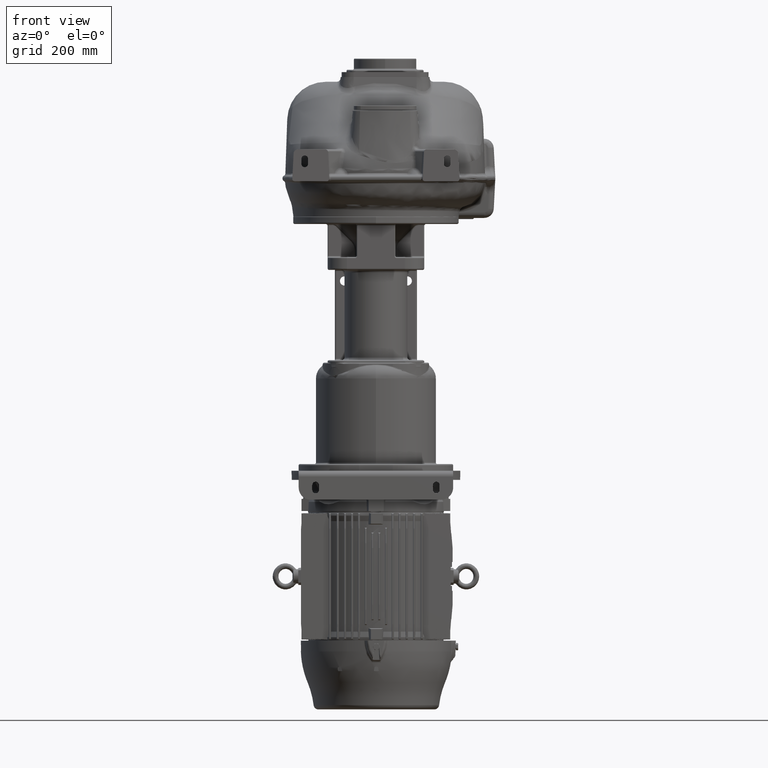
[diagram: clean part render]
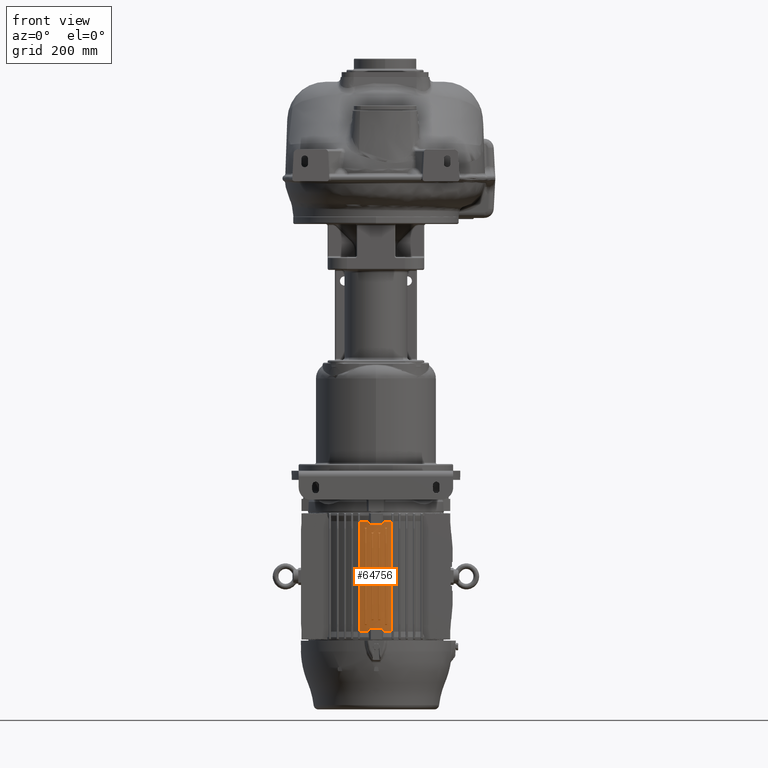
[diagram: same view with one face highlighted and labeled with its STEP entity id]
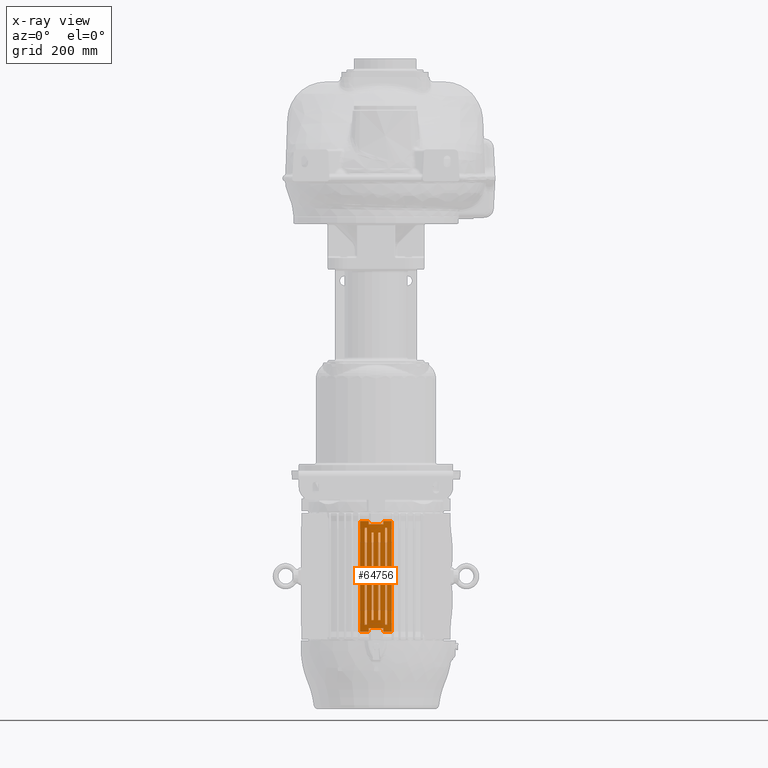
[diagram: x-ray of the same camera — body ghosted, the highlighted face saturated]
A machine part, front view. The second image highlights one B-rep face of the part: STEP entity #64756.
The next image is the same camera in x-ray: the body ghosted, the highlighted face saturated — about 0% of this face is hidden behind the body in this view.
In plain terms, the highlighted cylindrical surface (partial cylindrical patch) has radius 137 mm, axis along (0, 0, 1).
Its self-contained STEP definition (entity closure, byte-faithful):
#10325=CARTESIAN_POINT('',(1.9E1,2.2E2,-7.098389290849E2));
#10326=DIRECTION('',(0.E0,0.E0,1.E0));
#10327=DIRECTION('',(1.115642527890E-1,-9.937572226151E-1,0.E0));
#10328=AXIS2_PLACEMENT_3D('',#10325,#10326,#10327);
#11656=CARTESIAN_POINT('',(1.9E1,2.2E2,-9.387610709151E2));
#11657=DIRECTION('',(0.E0,0.E0,-1.E0));
#11658=DIRECTION('',(2.392273428924E-1,-9.709635824338E-1,0.E0));
#11659=AXIS2_PLACEMENT_3D('',#11656,#11657,#11658);
#11673=CARTESIAN_POINT('',(3.428430263209E1,8.385526050173E1,
-9.317378671218E2));
#11674=CARTESIAN_POINT('',(2.409476754403E1,8.271133133826E1,
-9.318379479555E2));
#11675=CARTESIAN_POINT('',(1.390523245597E1,8.271133133826E1,
-9.318379479555E2));
#11676=CARTESIAN_POINT('',(3.715697367913E0,8.385526050173E1,
-9.317378671218E2));
#11678=DIRECTION('',(0.E0,0.E0,1.E0));
#11679=VECTOR('',#11678,7.023203793346E0);
#11680=CARTESIAN_POINT('',(3.715697367913E0,8.385526050173E1,
-9.387610709151E2));
#11681=LINE('',#11680,#11679);
#11682=DIRECTION('',(0.E0,0.E0,-1.E0));
#11683=VECTOR('',#11682,2.289221418303E2);
#11684=CARTESIAN_POINT('',(-1.377414597625E1,8.697798920657E1,
-7.098389290849E2));
#11685=LINE('',#11684,#11683);
#11686=DIRECTION('',(0.E0,-1.011707415401E-14,1.E0));
#11687=VECTOR('',#11686,7.023203793347E0);
#11688=CARTESIAN_POINT('',(3.715697367913E0,8.385526050173E1,
-7.168621328782E2));
#11689=LINE('',#11688,#11687);
#11690=CARTESIAN_POINT('',(3.715697367913E0,8.385526050173E1,
-7.168621328782E2));
#11691=CARTESIAN_POINT('',(1.390523245597E1,8.271133133826E1,
-7.167620520445E2));
#11692=CARTESIAN_POINT('',(2.409476754403E1,8.271133133826E1,
-7.167620520445E2));
#11693=CARTESIAN_POINT('',(3.428430263209E1,8.385526050173E1,
-7.168621328782E2));
#11695=DIRECTION('',(0.E0,0.E0,-1.E0));
#11696=VECTOR('',#11695,7.023203793347E0);
#11697=CARTESIAN_POINT('',(3.428430263209E1,8.385526050173E1,
-7.098389290849E2));
#11698=LINE('',#11697,#11696);
#11699=DIRECTION('',(0.E0,0.E0,1.E0));
#11700=VECTOR('',#11699,2.289221418303E2);
#11701=CARTESIAN_POINT('',(5.177414597625E1,8.697798920657E1,
-9.387610709151E2));
#11702=LINE('',#11701,#11700);
#11703=DIRECTION('',(0.E0,0.E0,-1.E0));
#11704=VECTOR('',#11703,7.023203793346E0);
#11705=CARTESIAN_POINT('',(3.428430263209E1,8.385526050173E1,
-9.317378671218E2));
#11706=LINE('',#11705,#11704);
#11707=DIRECTION('',(0.E0,0.E0,1.E0));
#11708=VECTOR('',#11707,2.013144466757E2);
#11709=CARTESIAN_POINT('',(-4.190841392367E0,8.497709499676E1,
-9.249572233378E2));
#11710=LINE('',#11709,#11708);
#11711=DIRECTION('',(0.E0,0.E0,-1.E0));
#11712=VECTOR('',#11711,2.013144466757E2);
#11713=CARTESIAN_POINT('',(2.589709931828E-1,8.428790093818E1,
-7.236427766622E2));
#11714=LINE('',#11713,#11712);
#11715=DIRECTION('',(0.E0,0.E0,1.E0));
#11716=VECTOR('',#11715,1.813144466757E2);
#11717=CARTESIAN_POINT('',(9.775413463679E0,8.331091117710E1,
-9.149572233378E2));
#11718=LINE('',#11717,#11716);
#11719=DIRECTION('',(0.E0,0.E0,-1.E0));
#11720=VECTOR('',#11719,1.813144466757E2);
#11721=CARTESIAN_POINT('',(1.421199941170E1,8.308369326349E1,
-7.336427766622E2));
#11722=LINE('',#11721,#11720);
#11723=DIRECTION('',(0.E0,0.E0,1.E0));
#11724=VECTOR('',#11723,2.013144466757E2);
#11725=CARTESIAN_POINT('',(3.774102900682E1,8.428790093818E1,
-9.249572233378E2));
#11726=LINE('',#11725,#11724);
#11727=DIRECTION('',(0.E0,0.E0,-1.E0));
#11728=VECTOR('',#11727,2.013144466757E2);
#11729=CARTESIAN_POINT('',(4.219084139237E1,8.497709499676E1,
-7.236427766622E2));
#11730=LINE('',#11729,#11728);
#11731=DIRECTION('',(0.E0,0.E0,1.E0));
#11732=VECTOR('',#11731,1.813144466757E2);
#11733=CARTESIAN_POINT('',(2.378800058831E1,8.308369326349E1,
-9.149572233378E2));
#11734=LINE('',#11733,#11732);
#11735=DIRECTION('',(0.E0,0.E0,-1.E0));
#11736=VECTOR('',#11735,1.813144466757E2);
#11737=CARTESIAN_POINT('',(2.822458653632E1,8.331091117710E1,
-7.336427766622E2));
#11738=LINE('',#11737,#11736);
#19256=CARTESIAN_POINT('',(1.9E1,2.2E2,-7.098389290849E2));
#19257=DIRECTION('',(0.E0,0.E0,1.E0));
#19258=DIRECTION('',(-2.392273428923E-1,-9.709635824338E-1,0.E0));
#19259=AXIS2_PLACEMENT_3D('',#19256,#19257,#19258);
#19266=CARTESIAN_POINT('',(-1.377414597625E1,8.697798920657E1,
-7.098389290849E2));
#19290=CARTESIAN_POINT('',(-1.377414597625E1,8.697798920657E1,
-9.387610709151E2));
#19297=CARTESIAN_POINT('',(1.9E1,2.2E2,-9.387610709151E2));
#19298=DIRECTION('',(0.E0,0.E0,-1.E0));
#19299=DIRECTION('',(-1.115642527890E-1,-9.937572226151E-1,0.E0));
#19300=AXIS2_PLACEMENT_3D('',#19297,#19298,#19299);
#19302=CARTESIAN_POINT('',(3.715697367913E0,8.385526050173E1,
-9.387610709151E2));
#23302=CARTESIAN_POINT('',(-4.190841392367E0,8.497709499676E1,
-7.236427766622E2));
#23309=CARTESIAN_POINT('',(1.9E1,2.2E2,-7.236427766622E2));
#23310=DIRECTION('',(0.E0,0.E0,-1.E0));
#23311=DIRECTION('',(-1.367958321665E-1,-9.905992632250E-1,0.E0));
#23312=AXIS2_PLACEMENT_3D('',#23309,#23310,#23311);
#23319=CARTESIAN_POINT('',(2.589709931828E-1,8.428790093818E1,
-7.236427766622E2));
#23329=CARTESIAN_POINT('',(2.589709931828E-1,8.428790093818E1,
-9.249572233378E2));
#23336=CARTESIAN_POINT('',(1.9E1,2.2E2,-9.249572233378E2));
#23337=DIRECTION('',(0.E0,0.E0,1.E0));
#23338=DIRECTION('',(-1.692762145428E-1,-9.855686496587E-1,0.E0));
#23339=AXIS2_PLACEMENT_3D('',#23336,#23337,#23338);
#23346=CARTESIAN_POINT('',(-4.190841392367E0,8.497709499676E1,
-9.249572233378E2));
#23393=CARTESIAN_POINT('',(9.775413463679E0,8.331091117710E1,
-7.336427766622E2));
#23400=CARTESIAN_POINT('',(1.9E1,2.2E2,-7.336427766622E2));
#23401=DIRECTION('',(0.E0,0.E0,-1.E0));
#23402=DIRECTION('',(-3.494890940368E-2,-9.993891002665E-1,0.E0));
#23403=AXIS2_PLACEMENT_3D('',#23400,#23401,#23402);
#23421=CARTESIAN_POINT('',(1.9E1,2.2E2,-9.149572233378E2));
#23422=DIRECTION('',(0.E0,0.E0,1.E0));
#23423=DIRECTION('',(-6.733274844030E-2,-9.977305753496E-1,0.E0));
#23424=AXIS2_PLACEMENT_3D('',#23421,#23422,#23423);
#23431=CARTESIAN_POINT('',(9.775413463679E0,8.331091117710E1,
-9.149572233378E2));
#23477=CARTESIAN_POINT('',(3.774102900682E1,8.428790093818E1,
-7.236427766622E2));
#23484=CARTESIAN_POINT('',(1.9E1,2.2E2,-7.236427766622E2));
#23485=DIRECTION('',(0.E0,0.E0,-1.E0));
#23486=DIRECTION('',(1.692762145428E-1,-9.855686496587E-1,0.E0));
#23487=AXIS2_PLACEMENT_3D('',#23484,#23485,#23486);
#23504=CARTESIAN_POINT('',(4.219084139237E1,8.497709499676E1,
-9.249572233378E2));
#23511=CARTESIAN_POINT('',(1.9E1,2.2E2,-9.249572233378E2));
#23512=DIRECTION('',(0.E0,0.E0,1.E0));
#23513=DIRECTION('',(1.367958321666E-1,-9.905992632250E-1,0.E0));
#23514=AXIS2_PLACEMENT_3D('',#23511,#23512,#23513);
#23568=CARTESIAN_POINT('',(1.9E1,2.2E2,-7.336427766622E2));
#23569=DIRECTION('',(0.E0,0.E0,-1.E0));
#23570=DIRECTION('',(6.733274844031E-2,-9.977305753496E-1,0.E0));
#23571=AXIS2_PLACEMENT_3D('',#23568,#23569,#23570);
#23603=CARTESIAN_POINT('',(1.9E1,2.2E2,-9.149572233378E2));
#23604=DIRECTION('',(0.E0,0.E0,1.E0));
#23605=DIRECTION('',(3.494890940371E-2,-9.993891002665E-1,0.E0));
#23606=AXIS2_PLACEMENT_3D('',#23603,#23604,#23605);
#44815=VERTEX_POINT('',#23477);
#44822=VERTEX_POINT('',#23504);
#45037=VERTEX_POINT('',#23393);
#45040=VERTEX_POINT('',#23431);
#45043=CARTESIAN_POINT('',(1.421199941170E1,8.308369326349E1,
-7.336427766622E2));
#45045=VERTEX_POINT('',#45043);
#45060=VERTEX_POINT('',#23329);
#45061=VERTEX_POINT('',#23302);
#45063=VERTEX_POINT('',#23346);
#45070=VERTEX_POINT('',#23319);
#45073=VERTEX_POINT('',#19290);
#45076=VERTEX_POINT('',#19266);
#45748=CARTESIAN_POINT('',(3.428430263209E1,8.385526050173E1,
-7.098389290849E2));
#45749=CARTESIAN_POINT('',(5.177414597625E1,8.697798920657E1,
-7.098389290849E2));
#45750=VERTEX_POINT('',#45748);
#45751=VERTEX_POINT('',#45749);
#45770=CARTESIAN_POINT('',(5.177414597625E1,8.697798920657E1,
-9.387610709151E2));
#45771=CARTESIAN_POINT('',(3.428430263209E1,8.385526050173E1,
-9.387610709151E2));
#45772=VERTEX_POINT('',#45770);
#45773=VERTEX_POINT('',#45771);
#45790=CARTESIAN_POINT('',(3.428430263209E1,8.385526050173E1,
-9.317378671218E2));
#45791=VERTEX_POINT('',#45790);
#45794=CARTESIAN_POINT('',(2.378800058831E1,8.308369326349E1,
-9.149572233378E2));
#45795=CARTESIAN_POINT('',(2.378800058831E1,8.308369326349E1,
-7.336427766622E2));
#45796=VERTEX_POINT('',#45794);
#45797=VERTEX_POINT('',#45795);
#45822=CARTESIAN_POINT('',(4.219084139237E1,8.497709499676E1,
-7.236427766622E2));
#45823=VERTEX_POINT('',#45822);
#45826=CARTESIAN_POINT('',(3.428430263209E1,8.385526050173E1,
-7.168621328782E2));
#45827=VERTEX_POINT('',#45826);
#45828=CARTESIAN_POINT('',(3.774102900682E1,8.428790093818E1,
-9.249572233378E2));
#45829=VERTEX_POINT('',#45828);
#45834=CARTESIAN_POINT('',(2.822458653632E1,8.331091117710E1,
-9.149572233378E2));
#45835=VERTEX_POINT('',#45834);
#45836=CARTESIAN_POINT('',(2.822458653632E1,8.331091117710E1,
-7.336427766622E2));
#45837=VERTEX_POINT('',#45836);
#46273=VERTEX_POINT('',#19302);
#46473=CARTESIAN_POINT('',(1.421199941170E1,8.308369326349E1,
-9.149572233378E2));
#46474=VERTEX_POINT('',#46473);
#46475=CARTESIAN_POINT('',(3.715697367913E0,8.385526050173E1,
-7.168621328782E2));
#46476=CARTESIAN_POINT('',(3.715697367913E0,8.385526050173E1,
-7.098389290849E2));
#46477=VERTEX_POINT('',#46475);
#46478=VERTEX_POINT('',#46476);
#46485=CARTESIAN_POINT('',(3.715697367913E0,8.385526050173E1,
-9.317378671218E2));
#46486=VERTEX_POINT('',#46485);
#64689=CARTESIAN_POINT('',(1.9E1,2.2E2,-8.243E2));
#64690=DIRECTION('',(0.E0,0.E0,1.E0));
#64691=DIRECTION('',(0.E0,-1.E0,0.E0));
#64692=AXIS2_PLACEMENT_3D('',#64689,#64690,#64691);
#64693=CYLINDRICAL_SURFACE('',#64692,1.37E2);
#64695=ORIENTED_EDGE('',*,*,#64694,.T.);
#64697=ORIENTED_EDGE('',*,*,#64696,.F.);
#64699=ORIENTED_EDGE('',*,*,#64698,.T.);
#64701=ORIENTED_EDGE('',*,*,#64700,.F.);
#64703=ORIENTED_EDGE('',*,*,#64702,.T.);
#64705=ORIENTED_EDGE('',*,*,#64704,.F.);
#64707=ORIENTED_EDGE('',*,*,#64706,.T.);
#64708=ORIENTED_EDGE('',*,*,#62928,.F.);
#64709=ORIENTED_EDGE('',*,*,#62948,.T.);
#64710=ORIENTED_EDGE('',*,*,#62967,.F.);
#64711=ORIENTED_EDGE('',*,*,#64680,.T.);
#64713=ORIENTED_EDGE('',*,*,#64712,.F.);
#64714=EDGE_LOOP('',(#64695,#64697,#64699,#64701,#64703,#64705,#64707,#64708,
#64709,#64710,#64711,#64713));
#64715=FACE_OUTER_BOUND('',#64714,.F.);
#64717=ORIENTED_EDGE('',*,*,#64716,.T.);
#64719=ORIENTED_EDGE('',*,*,#64718,.F.);
#64721=ORIENTED_EDGE('',*,*,#64720,.T.);
#64723=ORIENTED_EDGE('',*,*,#64722,.F.);
#64724=EDGE_LOOP('',(#64717,#64719,#64721,#64723));
#64725=FACE_BOUND('',#64724,.F.);
#64727=ORIENTED_EDGE('',*,*,#64726,.T.);
#64729=ORIENTED_EDGE('',*,*,#64728,.F.);
#64731=ORIENTED_EDGE('',*,*,#64730,.T.);
#64733=ORIENTED_EDGE('',*,*,#64732,.F.);
#64734=EDGE_LOOP('',(#64727,#64729,#64731,#64733));
#64735=FACE_BOUND('',#64734,.F.);
#64737=ORIENTED_EDGE('',*,*,#64736,.T.);
#64739=ORIENTED_EDGE('',*,*,#64738,.F.);
#64741=ORIENTED_EDGE('',*,*,#64740,.T.);
#64743=ORIENTED_EDGE('',*,*,#64742,.F.);
#64744=EDGE_LOOP('',(#64737,#64739,#64741,#64743));
#64745=FACE_BOUND('',#64744,.F.);
#64747=ORIENTED_EDGE('',*,*,#64746,.T.);
#64749=ORIENTED_EDGE('',*,*,#64748,.F.);
#64751=ORIENTED_EDGE('',*,*,#64750,.T.);
#64753=ORIENTED_EDGE('',*,*,#64752,.F.);
#64754=EDGE_LOOP('',(#64747,#64749,#64751,#64753));
#64755=FACE_BOUND('',#64754,.F.);
#64756=ADVANCED_FACE('',(#64715,#64725,#64735,#64745,#64755),#64693,.T.);
#10329=CIRCLE('',#10328,1.37E2);
#11660=CIRCLE('',#11659,1.37E2);
#11677=B_SPLINE_CURVE_WITH_KNOTS('',3,(#11673,#11674,#11675,#11676),
.UNSPECIFIED.,.F.,.F.,(4,4),(0.E0,1.E0),.UNSPECIFIED.);
#11694=B_SPLINE_CURVE_WITH_KNOTS('',3,(#11690,#11691,#11692,#11693),
.UNSPECIFIED.,.F.,.F.,(4,4),(0.E0,1.E0),.UNSPECIFIED.);
#19260=CIRCLE('',#19259,1.37E2);
#19301=CIRCLE('',#19300,1.37E2);
#23313=CIRCLE('',#23312,1.37E2);
#23340=CIRCLE('',#23339,1.37E2);
#23404=CIRCLE('',#23403,1.37E2);
#23425=CIRCLE('',#23424,1.37E2);
#23488=CIRCLE('',#23487,1.37E2);
#23515=CIRCLE('',#23514,1.37E2);
#23572=CIRCLE('',#23571,1.37E2);
#23607=CIRCLE('',#23606,1.37E2);
#62928=EDGE_CURVE('',#45750,#45827,#11698,.T.);
#62948=EDGE_CURVE('',#45750,#45751,#10329,.T.);
#62967=EDGE_CURVE('',#45772,#45751,#11702,.T.);
#64680=EDGE_CURVE('',#45772,#45773,#11660,.T.);
#64694=EDGE_CURVE('',#45791,#46486,#11677,.T.);
#64696=EDGE_CURVE('',#46273,#46486,#11681,.T.);
#64698=EDGE_CURVE('',#46273,#45073,#19301,.T.);
#64700=EDGE_CURVE('',#45076,#45073,#11685,.T.);
#64702=EDGE_CURVE('',#45076,#46478,#19260,.T.);
#64704=EDGE_CURVE('',#46477,#46478,#11689,.T.);
#64706=EDGE_CURVE('',#46477,#45827,#11694,.T.);
#64712=EDGE_CURVE('',#45791,#45773,#11706,.T.);
#64716=EDGE_CURVE('',#45070,#45061,#23313,.T.);
#64718=EDGE_CURVE('',#45063,#45061,#11710,.T.);
#64720=EDGE_CURVE('',#45063,#45060,#23340,.T.);
#64722=EDGE_CURVE('',#45070,#45060,#11714,.T.);
#64726=EDGE_CURVE('',#45045,#45037,#23404,.T.);
#64728=EDGE_CURVE('',#45040,#45037,#11718,.T.);
#64730=EDGE_CURVE('',#45040,#46474,#23425,.T.);
#64732=EDGE_CURVE('',#45045,#46474,#11722,.T.);
#64736=EDGE_CURVE('',#45823,#44815,#23488,.T.);
#64738=EDGE_CURVE('',#45829,#44815,#11726,.T.);
#64740=EDGE_CURVE('',#45829,#44822,#23515,.T.);
#64742=EDGE_CURVE('',#45823,#44822,#11730,.T.);
#64746=EDGE_CURVE('',#45837,#45797,#23572,.T.);
#64748=EDGE_CURVE('',#45796,#45797,#11734,.T.);
#64750=EDGE_CURVE('',#45796,#45835,#23607,.T.);
#64752=EDGE_CURVE('',#45837,#45835,#11738,.T.);